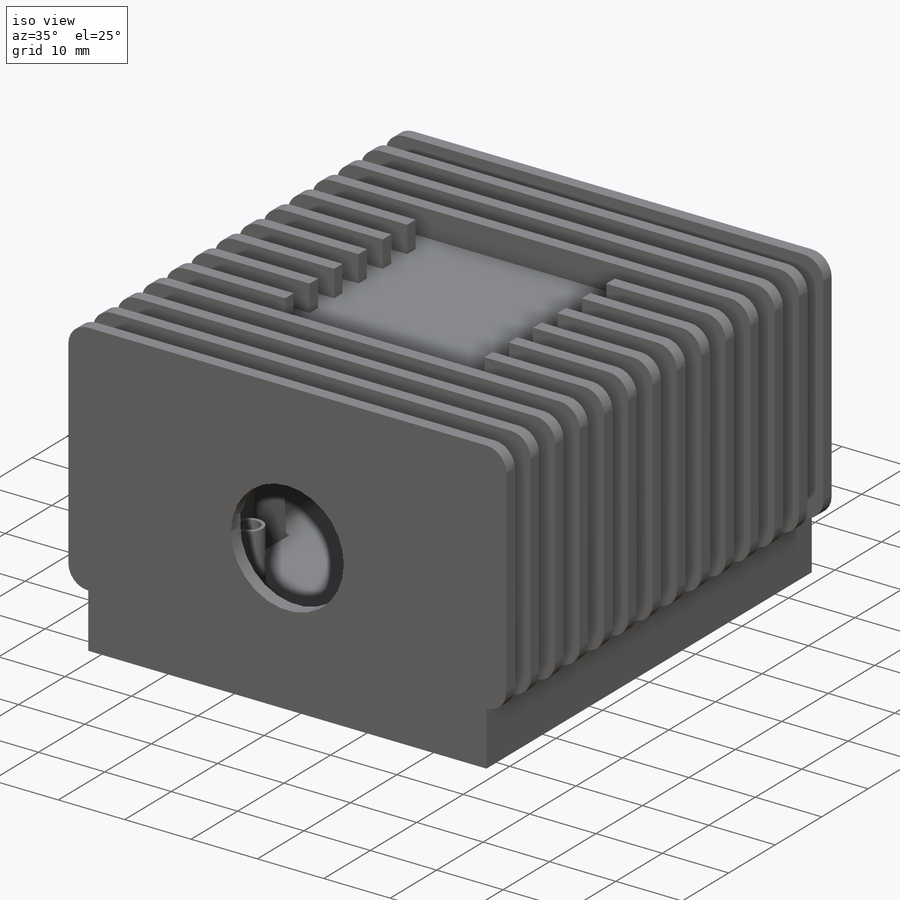
[diagram: iso view]
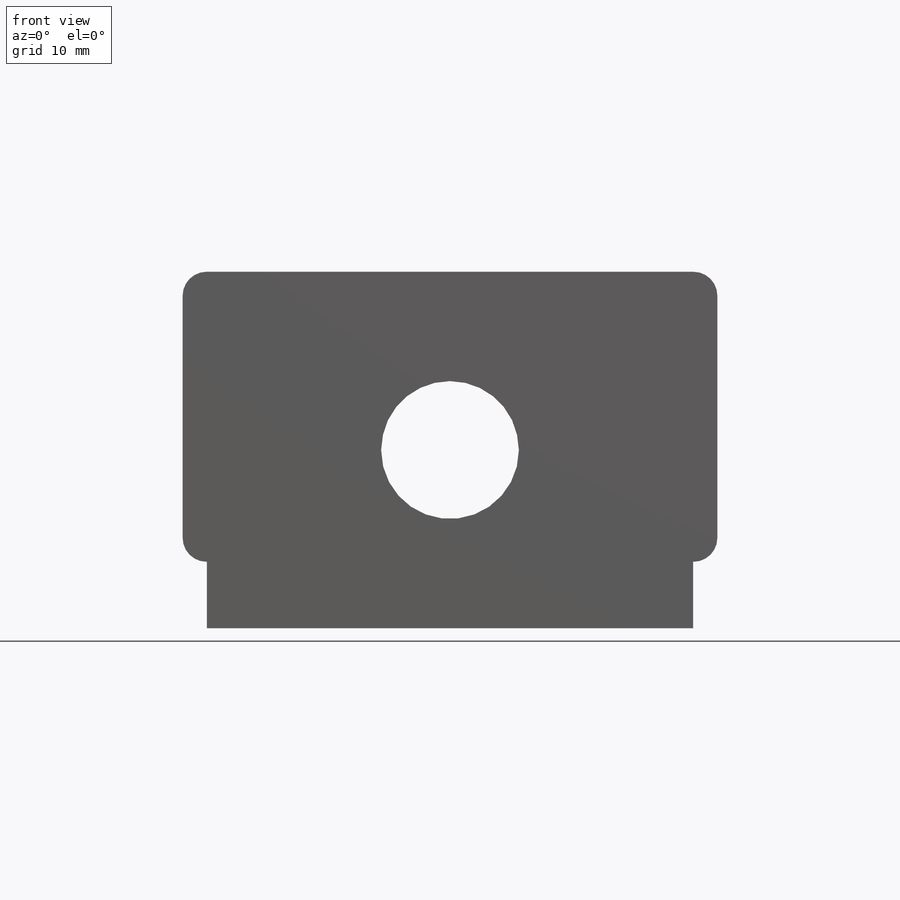
[diagram: front view]
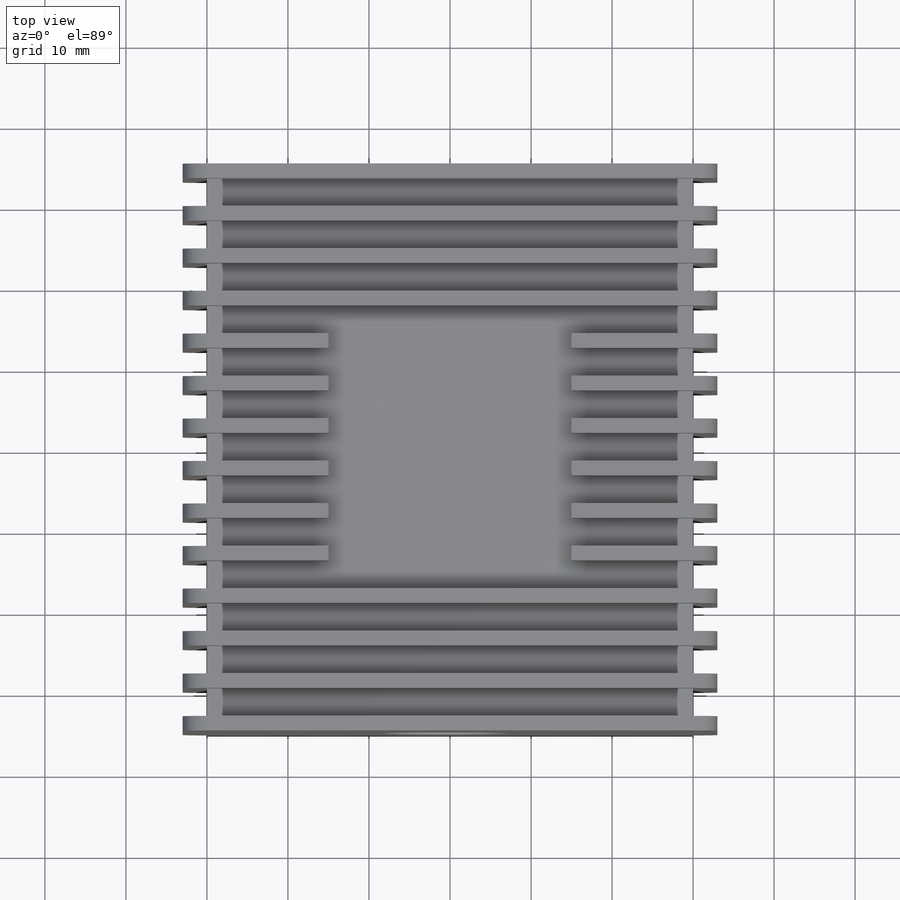
[diagram: top view]
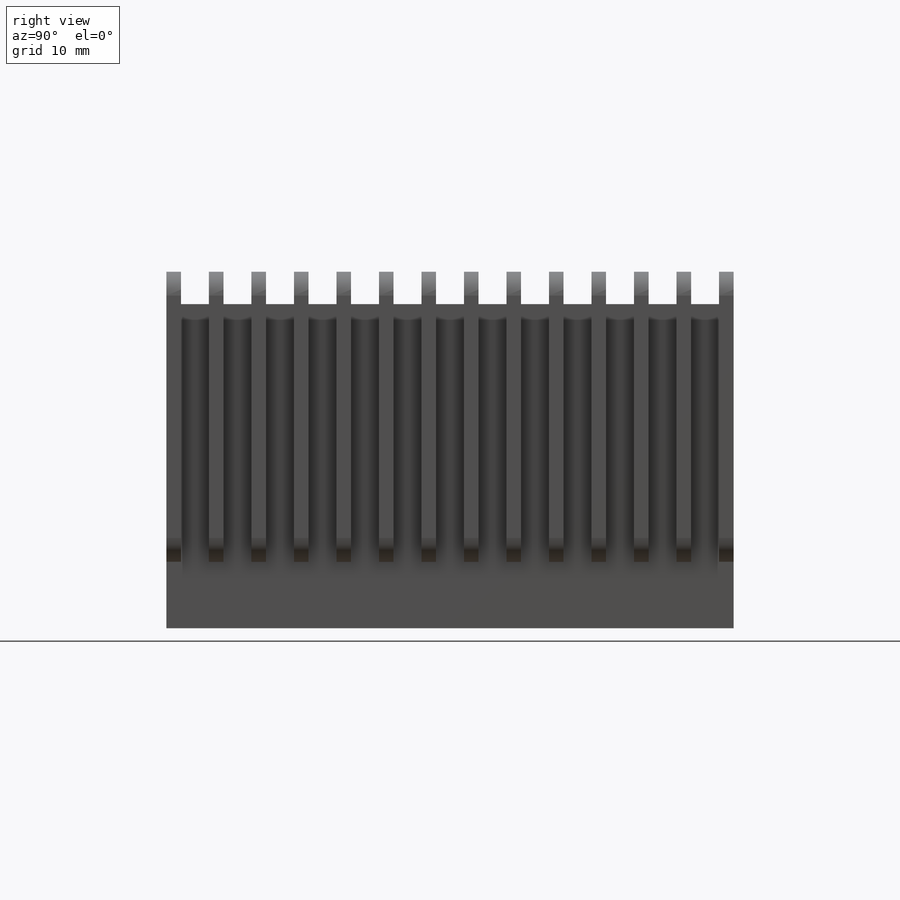
[diagram: right view]
SOLIDWORKS PART (.sldprt)
format: sldprt  version: not decoded by parser v0  size: 1,597,440 bytes
history: native  units: mm
features: sketch x10, fillet x6, plane x4, extrude x3, cut_extrude x3, mirror x2, material x1, pattern_linear x1, shell x1, move_body x1 + 1 further entry (+14 scaffold rows collapsed; 2 parser-record rows omitted)
feature tree (49):
  scaffold x14  (default folders/planes/origin — collapsed)
  material  "Material <not specified>"
  sketch  "Sketch1"  dims[D1=60.0mm D2=70.0mm]
  extrude  "Boss-Extrude1"  Depth=40mm
  sketch  "Sketch2"  dims[c1.D1=2.95mm c1.D2=2.95mm c1.D3=2.95mm c1.D4=2.95mm c2.D1=3.0mm c2.D5=4.0mm]
  extrude  "Boss-Extrude2"  Depth=1.8mm
  pattern_linear  "LPattern1"  Count1=14 Count2=1 Spacing1=5.246154mm Spacing2=50mm
  plane  "Plane1"  Offset=0mm
  sketch  "Sketch5"  dims[D1=34.4304mm D2=30.0mm]
  cut_extrude  "Cut-Extrude1"  Depth=16.251847mm
  shell  "Shell2"  Thickness=2mm
  fillet  "Fillet5"  Radius=2mm
  plane  "Plane2"
  sketch  "Sketch15"  dims[D1=3.0mm]
  cut_extrude  "Cut-Extrude6"  Depth=84.5mm GrooveHeight=2mm GrooveWidth=1mm GrooveDraftAngle=3deg Clearance=0mm Gap=0mm upGap=2mm LipHeight=2mm LipWidth=1mm LipDraftAngle=3deg
  parser-record x2  (decoder bookkeeping rows leaked as tree rows — omitted from the tree; the rows remain in map.json)
  sketch  "3DSketch1"  dims[BaseDepth=1.5mm TopDepth=1.5mm Width=4.0mm HookHeight=6.0mm Overhang=1.0mm BodyHeight=3.0mm Draft=3.0deg LipHeight=0.0mm HeightOffset=0.0mm WidthOffset=0.0mm Clearance=0.0mm Gap=0.0mm GapHeight=2.0mm]
  fillet  "Fillet6"  Radius=1mm
  fillet  "Fillet7"  Radius=1mm
  plane  "Plane3"
  mirror  "Mirror8"
  mirror  "Mirror9"
  fillet  "Fillet8"  Radius=1mm
  fillet  "Fillet9"  Radius=1mm
  sketch  "Sketch6"  dims[D1=3.0mm]
  extrude  "Boss-Extrude3"  Depth=10mm
  fillet  "Fillet10"  Radius=3mm
  plane  "Plane4"  Offset=1.5mm
  sketch  "Sketch7"  dims[D1=1.44mm]
  sketch  "Sketch11"  dims[D1=~1.066397mm]
  cut_extrude  "Cut-Extrude5"  [1 undecoded]
  sketch  "Sketch11<2>"  dims[D1=8.5mm]
  sketch  "Sketch13"
  "Sketch-Pattern1"
  move_body  "Body-Move/Copy1"
decode coverage: 22 of 27 modeling features carry decoded parameters; 1 rows unclassified (native names shown)
note: ~ marks probable driven/reference dimensions
note: 1 parameter value undecoded
note: suppression state not decoded; provenance and decode notes live in map.json
